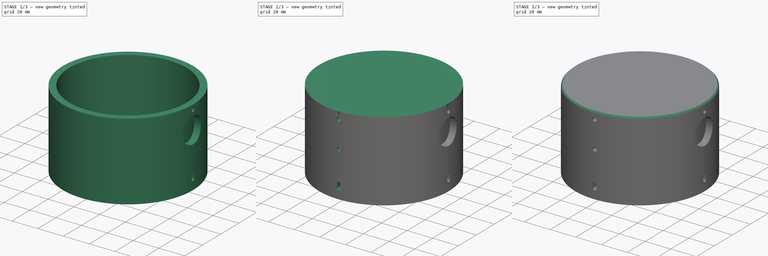
[diagram: build sequence overview — one tinted view per stage of 3, left to right]
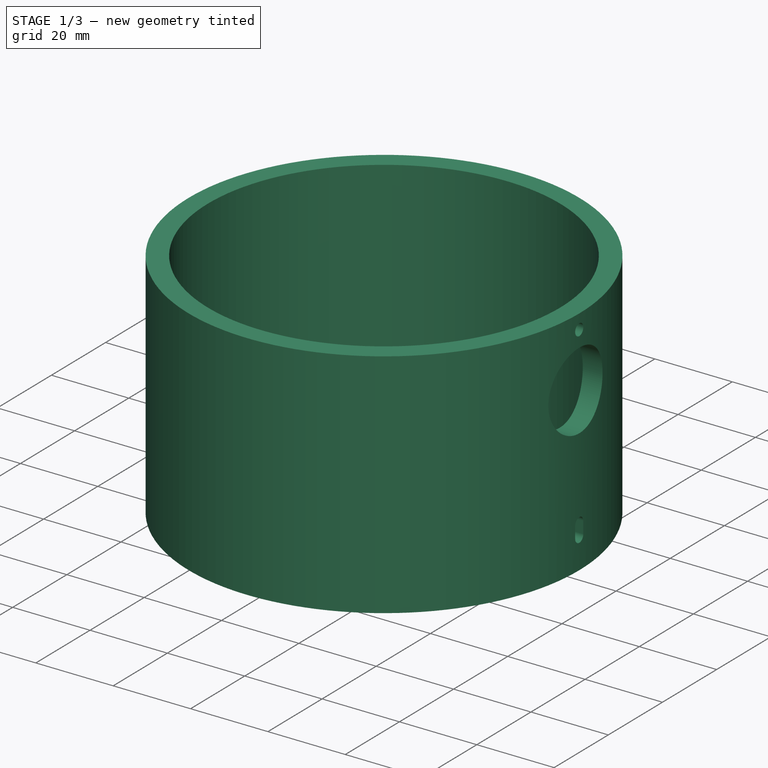
[diagram: stage 1 of 3 — iso view after this stage's code; geometry added in this stage tinted green]
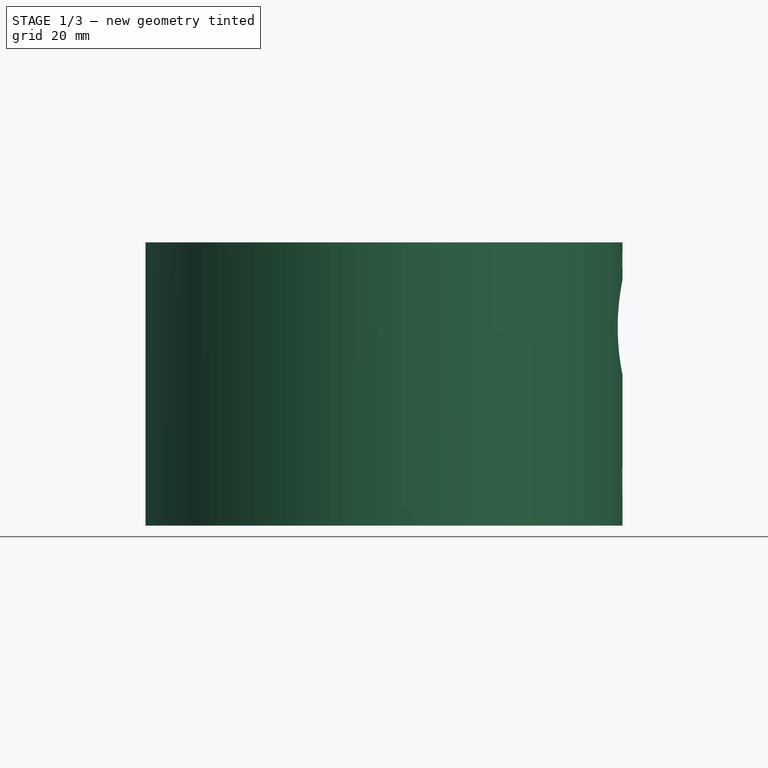
[diagram: stage 1 of 3 — front view after this stage's code; geometry added in this stage tinted green]
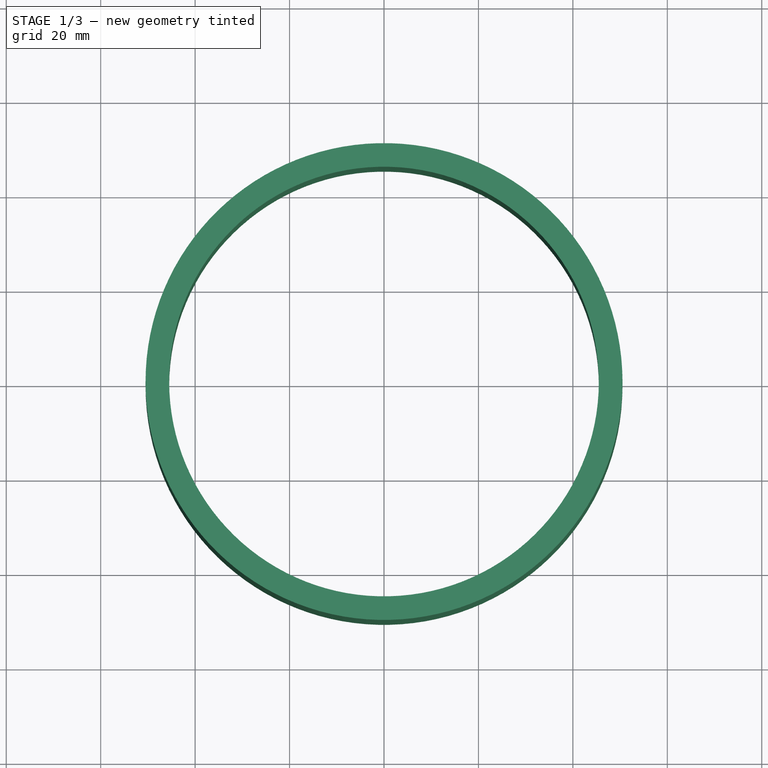
[diagram: stage 1 of 3 — top view after this stage's code; geometry added in this stage tinted green]
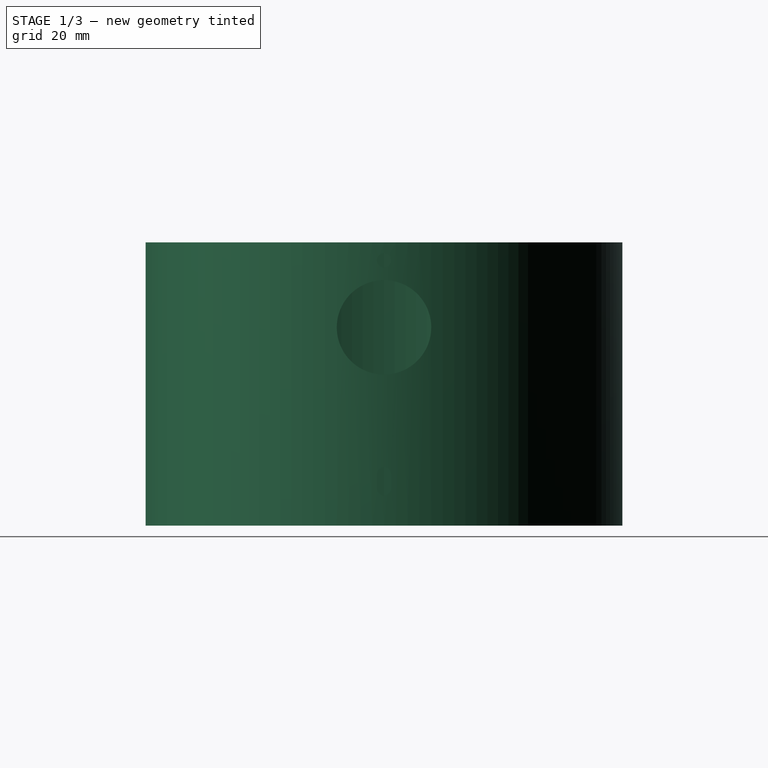
[diagram: stage 1 of 3 — right view after this stage's code; geometry added in this stage tinted green]
FCSTD DOCUMENT  (FreeCAD 1.0R39109 (Git))
Label: Pipe Jig
License: All rights reserved
LicenseURL: https://en.wikipedia.org/wiki/All_rights_reserved
objects: Sketcher::SketchObject×5, PartDesign::Plane×3, PartDesign::Pocket×3, PartDesign::Pad×2, PartDesign::Chamfer×2, App::VarSet×1, PartDesign::Body×1
note: 35 computed .brp shape members not serialized (recipe doc carries the construction recipe); baked Part::Feature solids carry a one-line shape summary decoded from their .brp

FEATURE [Sketcher::SketchObject] Sketch
  ArcFitTolerance = 1e-06
  AttachmentSupport = -> [XY_Plane]
  FullyConstrained = true
  MakeInternals = false
  MapMode = 5
  expr: Constraints[0] = VarSet.pipe_ID
  expr: Constraints[2] = VarSet.pipe_OD
  sketch-geometry (2):
    g0: Circle CenterX=0 CenterY=0 CenterZ=0 NormalX=0 NormalY=0 NormalZ=1 AngleXU=0 Radius=45.5
    g1: Circle CenterX=0 CenterY=0 CenterZ=0 NormalX=0 NormalY=0 NormalZ=1 AngleXU=0 Radius=50.5
  constraints (4):
    c: Diameter(g0) = 91
    c: Coincident(g0,g-1)
    c: Diameter(g1) = 101
    c: Coincident(g1,g0)
FEATURE [PartDesign::Pad] Pad
  Direction = (0,0,1)
  Length = 60
  Length2 = 10
  Profile = -> Sketch
  ReferenceAxis = -> Sketch [N_Axis]
  Refine = true
  Suppressed = false
  Type = 0
FEATURE [PartDesign::Plane] DatumPlane
  AttachmentOffset = pos=(0,-50.5,0) rot=(-1,0,0;1.5708rad)
  AttachmentSupport = -> [Pad]
  Length = 119.748
  MapMode = 11
  Placement = pos=(50.5,-1.12e-14,60) rot=(-0.57735,-0.57735,0.57735;2.0944rad)
  ResizeMode = 0
  Width = 105.748
  expr: .AttachmentOffset.Base.y = VarSet.pipe_OD / 2 * -1
FEATURE [Sketcher::SketchObject] Sketch002
  ArcFitTolerance = 1e-06
  AttachmentSupport = -> [DatumPlane]
  FullyConstrained = true
  MakeInternals = false
  MapMode = 5
  Placement = pos=(50.5,-1.12e-14,60) rot=(0.57735,0.57735,-0.57735;4.18879rad)
  sketch-geometry (15):
    g0: Circle CenterX=0 CenterY=3.8 CenterZ=0 NormalX=0 NormalY=0 NormalZ=1 AngleXU=0 Radius=1.5
    g1: LineSegment StartX=6e-16 StartY=47.6 StartZ=0 EndX=0.0005 EndY=47.6 EndZ=0
    g2: LineSegment StartX=1.5 StartY=49.0995 StartZ=0 EndX=1.5 EndY=52.1005 EndZ=0
    g3: LineSegment StartX=0.0005 StartY=53.6 StartZ=0 EndX=1.1e-15 EndY=53.6 EndZ=0
    g4: LineSegment StartX=-1.5 StartY=52.1 StartZ=0 EndX=-1.5 EndY=49.1 EndZ=0
    g5: GeomPoint [constr] X=0 Y=50.6 Z=0
    g6: ArcOfCircle CenterX=1e-15 CenterY=52.1 CenterZ=0 NormalX=0 NormalY=0 NormalZ=1 AngleXU=0 Radius=1.5 StartAngle=1.5708 EndAngle=3.14159
    g7: GeomPoint [constr] X=-1.5 Y=53.6 Z=0
    g8: ArcOfCircle CenterX=0.0005 CenterY=52.1005 CenterZ=0 NormalX=0 NormalY=0 NormalZ=1 AngleXU=0 Radius=1.4995 StartAngle=0 EndAngle=1.5708
    g9: GeomPoint [constr] X=1.5 Y=53.6 Z=0
    g10: ArcOfCircle CenterX=0.0005 CenterY=49.0995 CenterZ=0 NormalX=0 NormalY=0 NormalZ=1 AngleXU=0 Radius=1.4995 StartAngle=4.71239 EndAngle=6.28319
    g11: GeomPoint [constr] X=1.5 Y=47.6 Z=0
    g12: ArcOfCircle CenterX=9e-16 CenterY=49.1 CenterZ=0 NormalX=0 NormalY=0 NormalZ=1 AngleXU=0 Radius=1.5 StartAngle=3.14159 EndAngle=4.71239
    g13: GeomPoint [constr] X=-1.5 Y=47.6 Z=0
    g14: Circle CenterX=0 CenterY=18 CenterZ=0 NormalX=0 NormalY=0 NormalZ=1 AngleXU=0 Radius=10
  constraints (35):
    c: Diameter(g0) = 3
    c: PointOnObject(g0,g-2)
    c: DistanceY(g-1,g0) = 3.8
    c: Horizontal(g1)
    c: Horizontal(g3)
    c: Vertical(g2)
    c: Vertical(g4)
    c: Symmetric(g9,g13,g5)
    c: Distance(g11,g13) = 3
    c: Distance(g13,g7) = 6
    c: PointOnObject(g5,g-2)
    c: PointOnObject(g7,g4)
    c: PointOnObject(g7,g3)
    c: Tangent(g4,g6) = -1.5708
    c: Tangent(g3,g6) = -1.5708
    c: PointOnObject(g9,g2)
    c: PointOnObject(g9,g3)
    c: Tangent(g2,g8) = -1.5708
    c: Tangent(g3,g8) = -1.5708
    c: PointOnObject(g11,g2)
    c: PointOnObject(g11,g1)
    c: Tangent(g2,g10) = -1.5708
    c: Tangent(g1,g10) = -1.5708
    c: PointOnObject(g13,g4)
    c: PointOnObject(g13,g1)
    c: Tangent(g4,g12) = -1.5708
    c: Tangent(g1,g12) = -1.5708
    c: Diameter(g6) = 3
    c: Diameter(g8) = 2.999
    c: Diameter(g10) = 2.999
    c: Diameter(g12) = 3
    c: DistanceY(g-1,g5) = 50.6
    c: Diameter(g14) = 20
    c: PointOnObject(g14,g-2)
    c: DistanceY(g-1,g14) = 18
FEATURE [PartDesign::Pocket] Pocket
  BaseFeature = -> Pad
  Direction = (1,0,0)
  Length = 8
  Length2 = 5
  Profile = -> Sketch002
  ReferenceAxis = -> Sketch002 [N_Axis]
  Refine = true
  Reversed = true
  Suppressed = false
  Type = 0
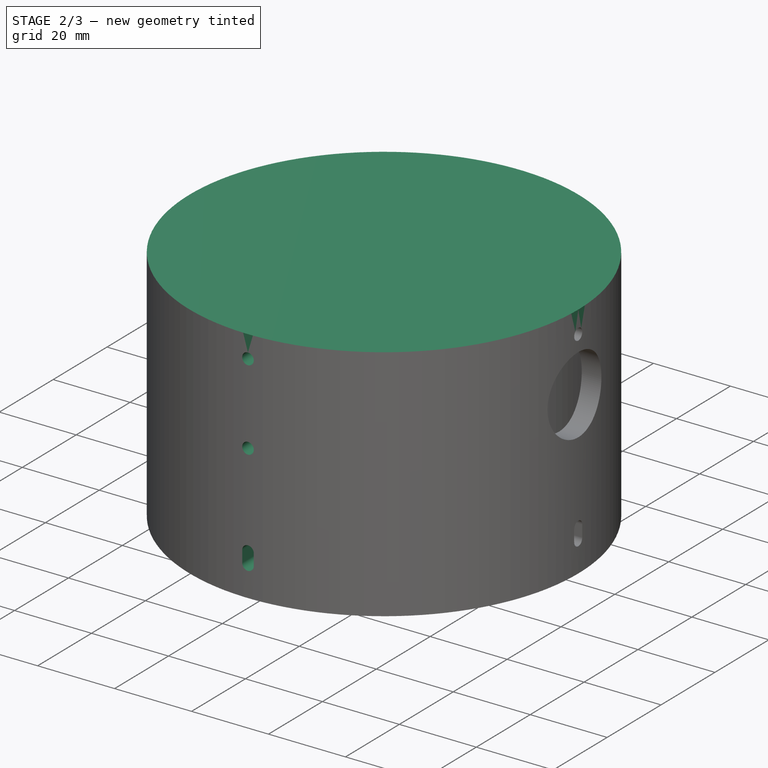
[diagram: stage 2 of 3 — iso view after this stage's code; geometry added in this stage tinted green]
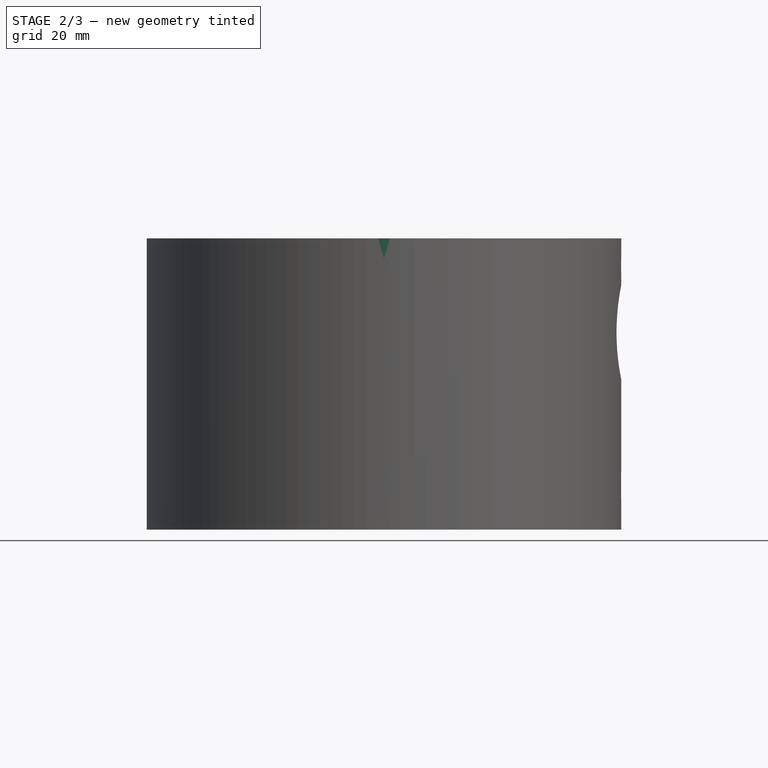
[diagram: stage 2 of 3 — front view after this stage's code; geometry added in this stage tinted green]
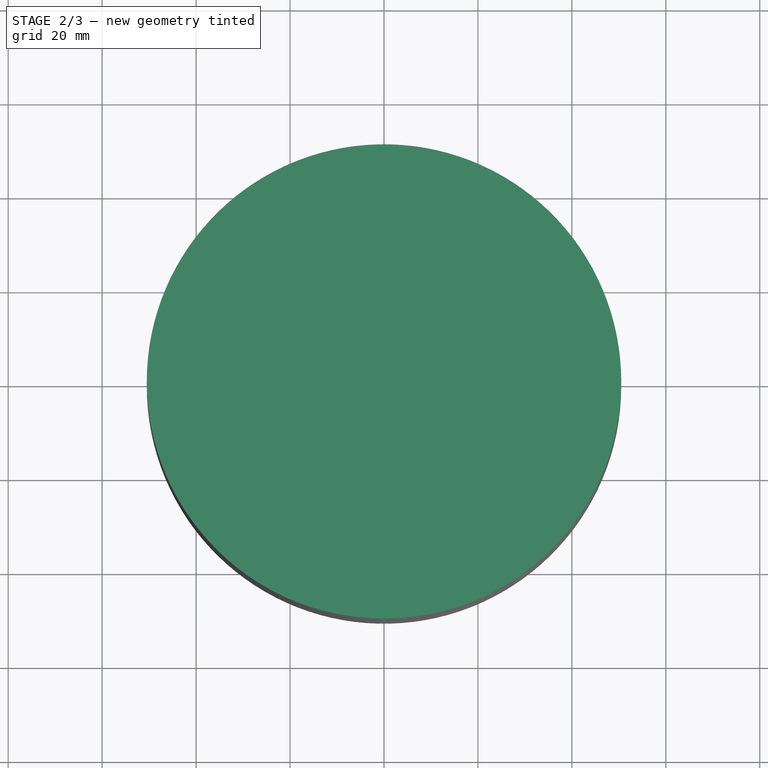
[diagram: stage 2 of 3 — top view after this stage's code; geometry added in this stage tinted green]
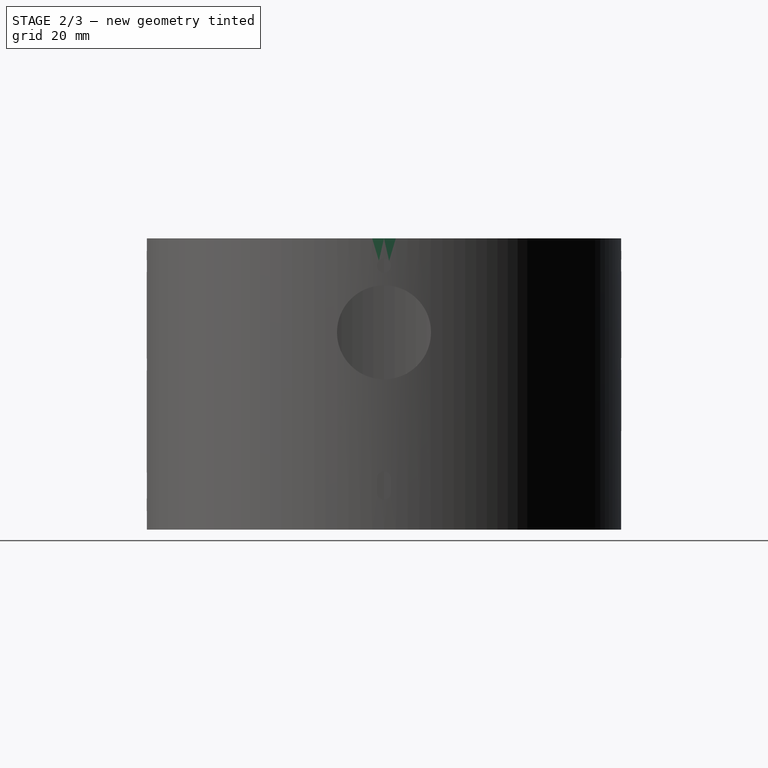
[diagram: stage 2 of 3 — right view after this stage's code; geometry added in this stage tinted green]
FEATURE [PartDesign::Plane] DatumPlane001
  AttachmentOffset = pos=(50.5,0,0) rot=(0,1,0;1.5708rad)
  AttachmentSupport = -> [Pocket]
  Length = 105.748
  MapMode = 11
  Placement = pos=(1.12e-14,50.5,60) rot=(-0.57735,0.57735,0.57735;2.0944rad)
  ResizeMode = 0
  Width = 119.748
  expr: .AttachmentOffset.Base.x = VarSet.pipe_OD / 2
FEATURE [Sketcher::SketchObject] Sketch003
  ArcFitTolerance = 1e-06
  AttachmentSupport = -> [DatumPlane001]
  ExternalGeometry = -> [Pocket]
  FullyConstrained = true
  MakeInternals = false
  MapMode = 5
  Placement = pos=(1.12e-14,50.5,60) rot=(0.57735,-0.57735,-0.57735;4.18879rad)
  sketch-geometry (2):
    g0: Circle CenterX=3.8 CenterY=0 CenterZ=0 NormalX=0 NormalY=0 NormalZ=1 AngleXU=0 Radius=1.5
    g1: Circle CenterX=24.8 CenterY=0 CenterZ=0 NormalX=0 NormalY=0 NormalZ=1 AngleXU=0 Radius=1.5
  constraints (8):
    c: Diameter(g0) = 3
    c: PointOnObject(g0,g-1)
    c: Diameter(g1) = 3
    c: PointOnObject(g1,g-1)
    c: DistanceX(g-1,g0) = 3.8
    c: DistanceX(g-1,g1) = 24.8
    c: DistanceX(g-3,g-3) = 0
    c: DistanceX(g-3,g-3) = 0
FEATURE [PartDesign::Pocket] Pocket001
  BaseFeature = -> Pocket
  Direction = (0,-1,0)
  Length = 8
  Length2 = 5
  Profile = -> Sketch003
  ReferenceAxis = -> Sketch003 [N_Axis]
  Refine = true
  Suppressed = false
  Type = 0
FEATURE [PartDesign::Plane] DatumPlane002
  AttachmentOffset = pos=(-50.5,0,0) rot=(0,-1,0;1.5708rad)
  AttachmentSupport = -> [Pocket001]
  Length = 105.748
  MapMode = 11
  Placement = pos=(-1.12e-14,-50.5,60) rot=(0.57735,-0.57735,0.57735;2.0944rad)
  ResizeMode = 0
  Width = 119.748
  expr: .AttachmentOffset.Base.x = VarSet.pipe_OD / 2 * -1
FEATURE [Sketcher::SketchObject] Sketch004
  ArcFitTolerance = 1e-06
  AttachmentSupport = -> [DatumPlane002]
  ExternalGeometry = -> [Pocket001]
  FullyConstrained = true
  MakeInternals = false
  MapMode = 5
  Placement = pos=(-1.12e-14,-50.5,60) rot=(0.57735,-0.57735,0.57735;2.0944rad)
  sketch-geometry (15):
    g0: Circle CenterX=-3.8 CenterY=0 CenterZ=0 NormalX=0 NormalY=0 NormalZ=1 AngleXU=0 Radius=1.5
    g1: Circle CenterX=-24.8 CenterY=0 CenterZ=0 NormalX=0 NormalY=0 NormalZ=1 AngleXU=0 Radius=1.5
    g2: LineSegment StartX=-52.1 StartY=-1.5 StartZ=0 EndX=-49.095 EndY=-1.5 EndZ=0
    g3: LineSegment StartX=-47.6 StartY=-0.005 StartZ=0 EndX=-47.6 EndY=-7e-16 EndZ=0
    g4: LineSegment StartX=-49.1 StartY=1.5 StartZ=0 EndX=-52.105 EndY=1.5 EndZ=0
    g5: LineSegment StartX=-53.6 StartY=0.005 StartZ=0 EndX=-53.6 EndY=-2e-16 EndZ=0
    g6: GeomPoint [constr] X=-50.6 Y=0 Z=0
    g7: ArcOfCircle CenterX=-52.1 CenterY=-4e-16 CenterZ=0 NormalX=0 NormalY=0 NormalZ=1 AngleXU=0 Radius=1.5 StartAngle=3.14159 EndAngle=4.71239
    g8: GeomPoint [constr] X=-53.6 Y=-1.5 Z=0
    g9: ArcOfCircle CenterX=-52.105 CenterY=0.005 CenterZ=0 NormalX=0 NormalY=0 NormalZ=1 AngleXU=0 Radius=1.495 StartAngle=1.5708 EndAngle=3.14159
    g10: GeomPoint [constr] X=-53.6 Y=1.5 Z=0
    g11: ArcOfCircle CenterX=-49.1 CenterY=-7e-16 CenterZ=0 NormalX=0 NormalY=0 NormalZ=1 AngleXU=0 Radius=1.5 StartAngle=0 EndAngle=1.5708
    g12: GeomPoint [constr] X=-47.6 Y=1.5 Z=0
    g13: ArcOfCircle CenterX=-49.095 CenterY=-0.005 CenterZ=0 NormalX=0 NormalY=0 NormalZ=1 AngleXU=0 Radius=1.495 StartAngle=4.71239 EndAngle=6.28319
    g14: GeomPoint [constr] X=-47.6 Y=-1.5 Z=0
  constraints (35):
    c: Diameter(g0) = 3
    c: PointOnObject(g0,g-1)
    c: Distance(g-1,g0) = 3.8
    c: Diameter(g1) = 3
    c: PointOnObject(g1,g-1)
    c: Distance(g1,g-1) = 24.8
    c: Horizontal(g2)
    c: Horizontal(g4)
    c: Vertical(g3)
    c: Vertical(g5)
    c: Symmetric(g12,g8,g6)
    c: Distance(g14,g8) = 6
    c: Distance(g8,g10) = 3
    c: PointOnObject(g6,g-1)
    c: PointOnObject(g8,g2)
    c: PointOnObject(g8,g5)
    c: Tangent(g2,g7) = -1.5708
    c: Tangent(g5,g7) = -1.5708
    c: PointOnObject(g10,g4)
    c: PointOnObject(g10,g5)
    c: Tangent(g4,g9) = -1.5708
    c: Tangent(g5,g9) = -1.5708
    c: PointOnObject(g12,g4)
    c: PointOnObject(g12,g3)
    c: Tangent(g4,g11) = -1.5708
    c: Tangent(g3,g11) = -1.5708
    c: PointOnObject(g14,g3)
    c: PointOnObject(g14,g2)
    c: Tangent(g3,g13) = -1.5708
    c: Tangent(g2,g13) = -1.5708
    c: Diameter(g7) = 3
    c: Diameter(g9) = 2.99
    c: Diameter(g11) = 3
    c: Diameter(g13) = 2.99
    c: DistanceX(g6,g-1) = 50.6
FEATURE [PartDesign::Pocket] Pocket002
  BaseFeature = -> Pocket001
  Direction = (0,1,0)
  Length = 5
  Length2 = 5
  Profile = -> Sketch004
  ReferenceAxis = -> Sketch004 [N_Axis]
  Refine = true
  Suppressed = false
  Type = 0
FEATURE [App::VarSet] VarSet
  pipe_ID = 91
  pipe_OD = 101
  expr: pipe_ID = 91
  expr: pipe_OD = 101
FEATURE [Sketcher::SketchObject] Sketch005
  ArcFitTolerance = 1e-06
  AttachmentSupport = -> [Pocket002]
  ExternalGeometry = -> [Pocket002]
  FullyConstrained = true
  MakeInternals = false
  MapMode = 5
  Placement = pos=(0,0,60) rot=(0,0,1;0rad)
  expr: Constraints[1] = VarSet.pipe_OD
  sketch-geometry (1):
    g0: Circle CenterX=0 CenterY=0 CenterZ=0 NormalX=0 NormalY=0 NormalZ=1 AngleXU=0 Radius=50.5
  constraints (2):
    c: Coincident(g0,g-1)
    c: Diameter(g0) = 101
FEATURE [PartDesign::Pad] Pad001
  BaseFeature = -> Pocket002
  Direction = (0,0,1)
  Length = 2
  Length2 = 10
  Profile = -> Sketch005
  ReferenceAxis = -> Sketch005 [N_Axis]
  Refine = true
  Suppressed = false
  Type = 0
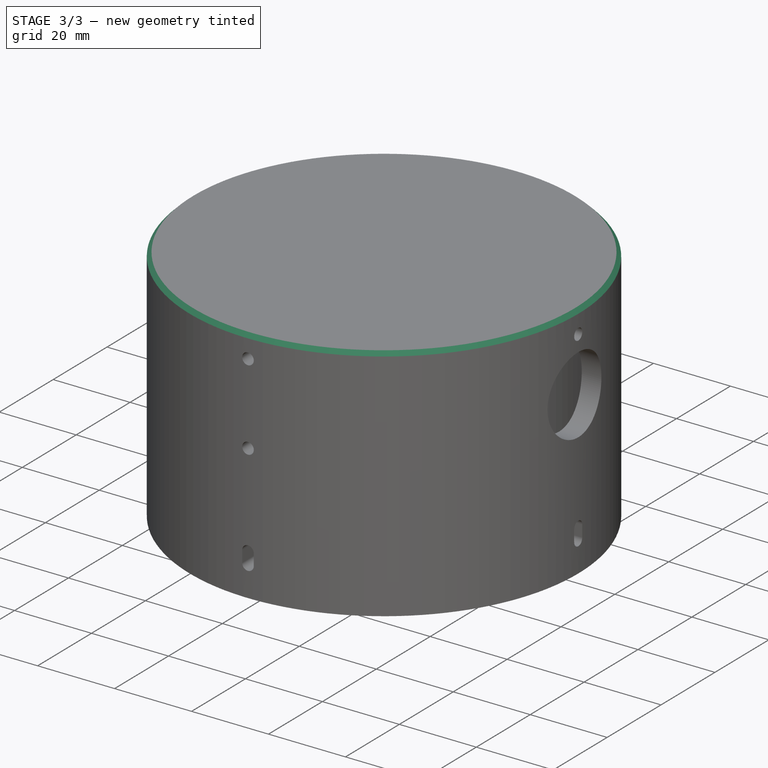
[diagram: stage 3 of 3 — iso view after this stage's code; geometry added in this stage tinted green]
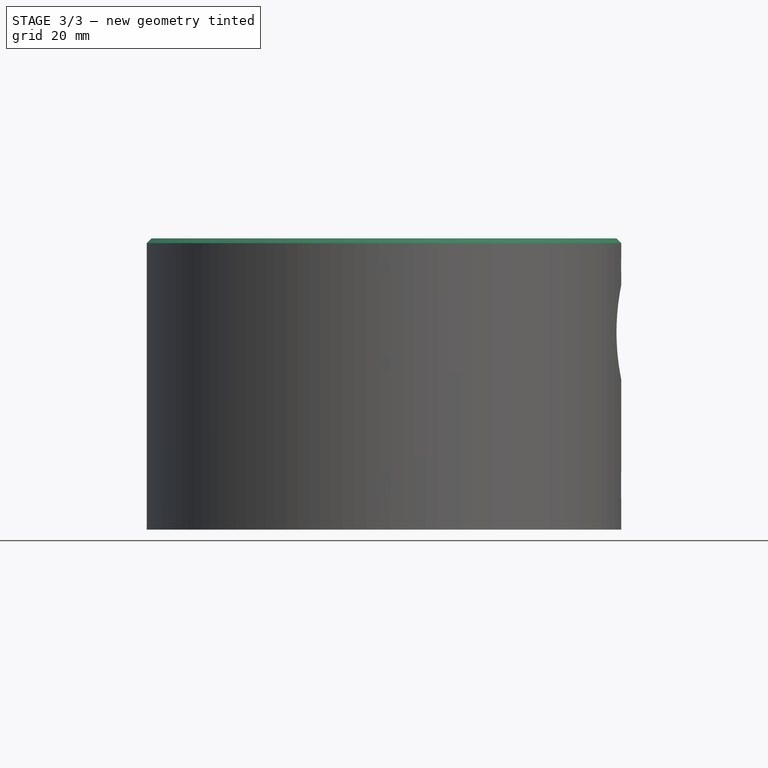
[diagram: stage 3 of 3 — front view after this stage's code; geometry added in this stage tinted green]
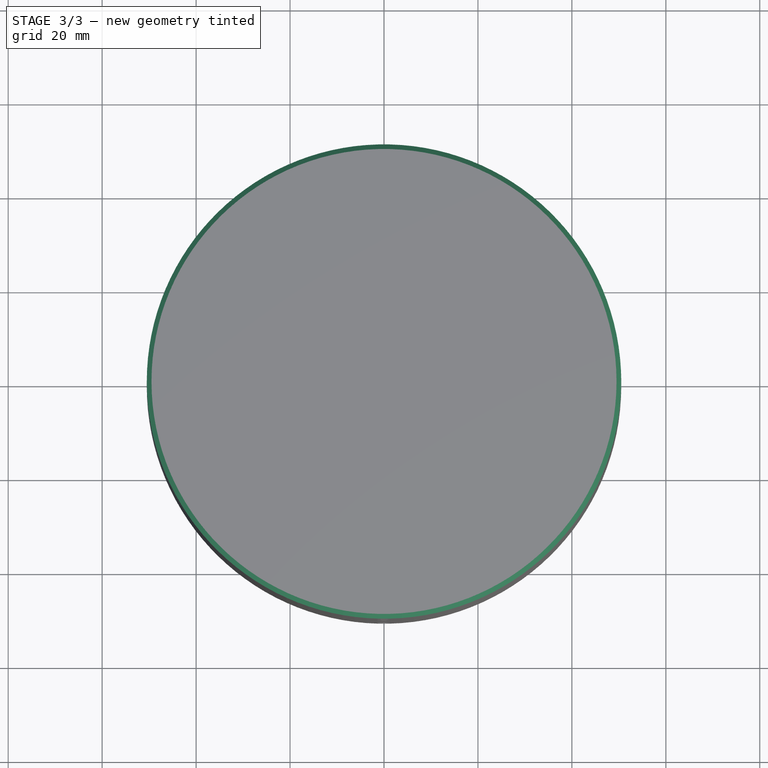
[diagram: stage 3 of 3 — top view after this stage's code; geometry added in this stage tinted green]
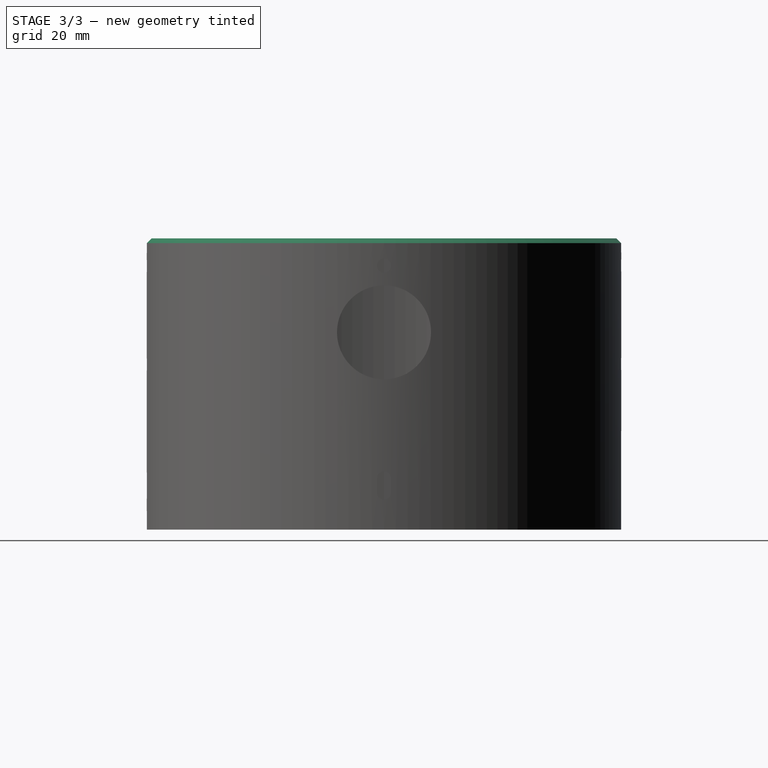
[diagram: stage 3 of 3 — right view after this stage's code; geometry added in this stage tinted green]
FEATURE [PartDesign::Chamfer] Chamfer
  Angle = 45
  Base = -> Pad001 [Edge81]
  BaseFeature = -> Pad001
  ChamferType = 0
  FlipDirection = false
  Refine = true
  Size = 1
  Size2 = 1
  SupportTransform = false
  Suppressed = false
  UseAllEdges = false
FEATURE [PartDesign::Chamfer] Chamfer001
  Angle = 45
  Base = -> Chamfer [Edge58]
  BaseFeature = -> Chamfer
  ChamferType = 0
  FlipDirection = false
  Refine = true
  Size = 1
  Size2 = 1
  SupportTransform = false
  Suppressed = false
  UseAllEdges = false
FEATURE [PartDesign::Body] Body
  AllowCompound = false
  Group = -> [Sketch,Pad,DatumPlane,Sketch002,Pocket,DatumPlane001,Sketch003,Pocket001,DatumPlane002,Sketch004,Pocket002,Sketch005,Pad001,Chamfer,Chamfer001]
  Origin = -> Origin
  Tip = -> Chamfer001
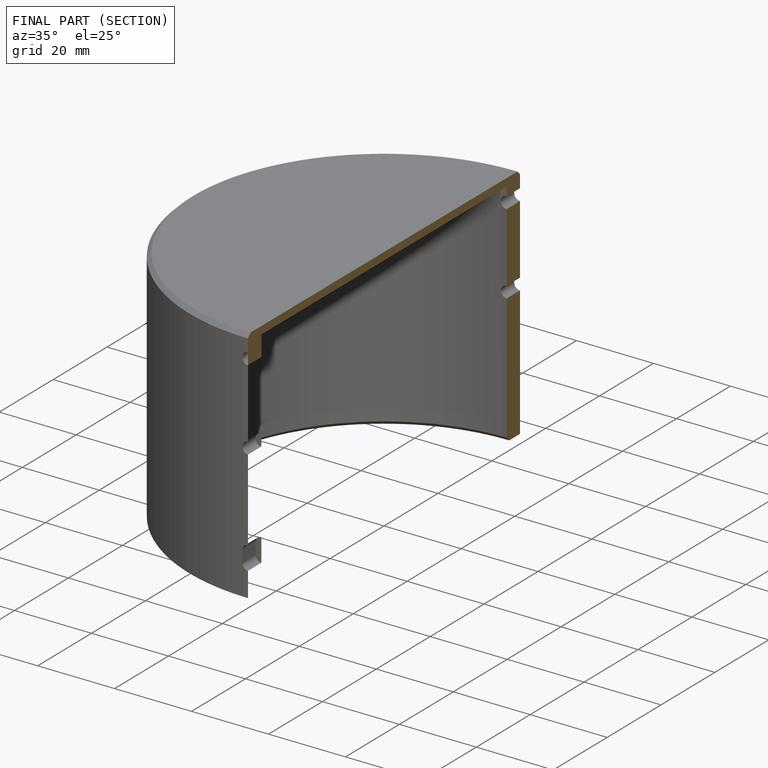
[diagram: finished part — half-section view (interior)]
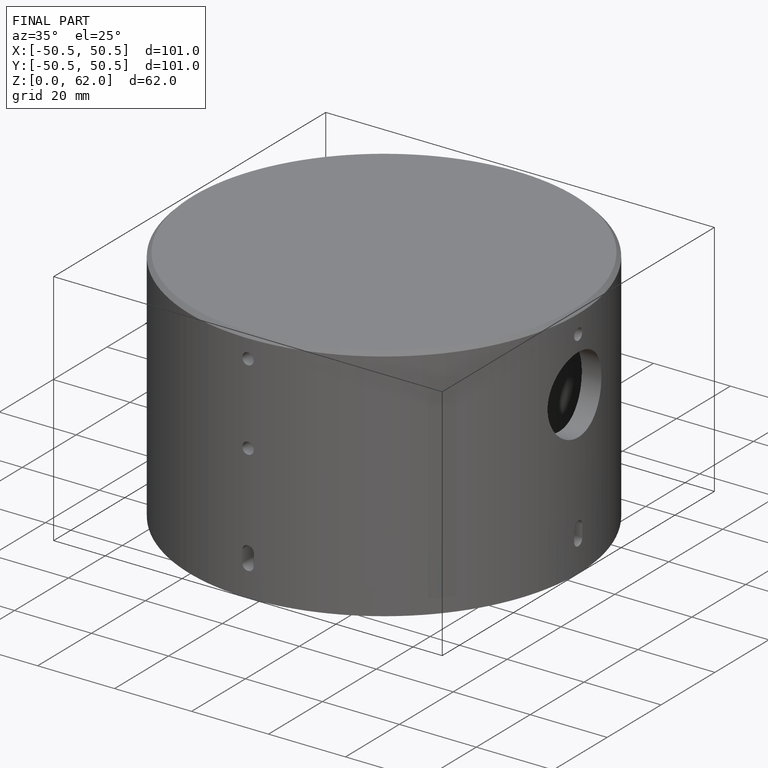
[diagram: finished part — iso view with bounding-box wireframe]
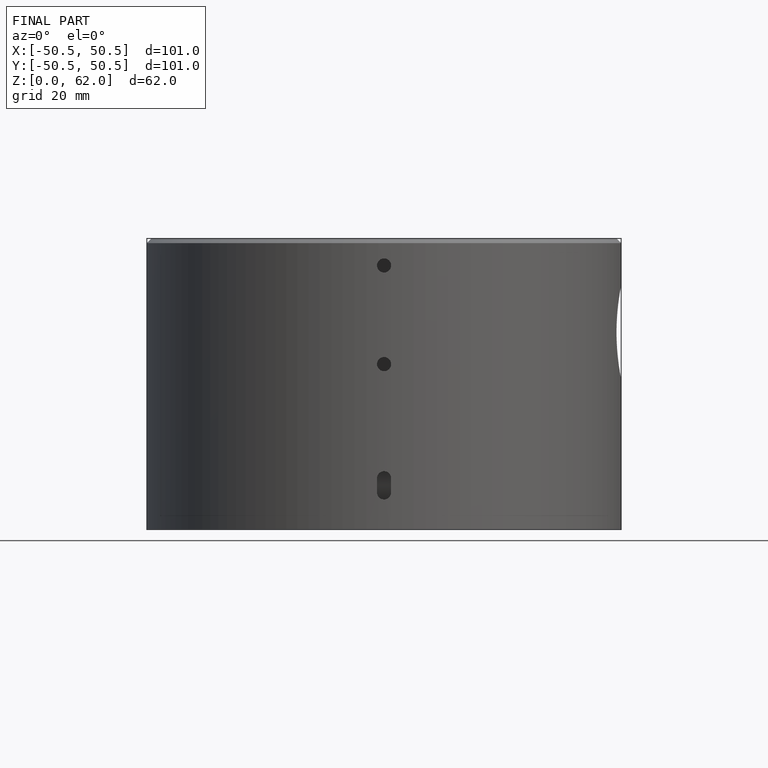
[diagram: finished part — front view with bounding-box wireframe]
